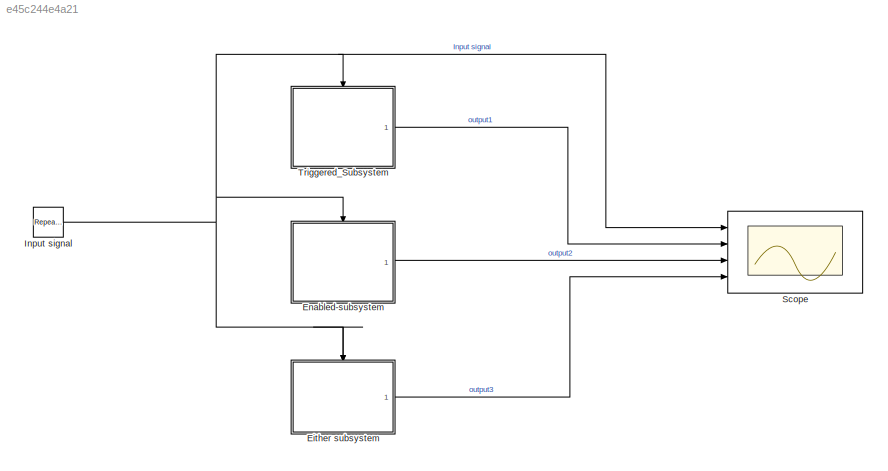
MODEL slx_e45c244e4a21
KIND model
CONFIG AbsTol = auto
CONFIG EnableMultiTasking = off
CONFIG FixedStep = auto
CONFIG MaxStep = auto
CONFIG MinStep = auto
CONFIG RelTol = 1e-3
CONFIG SampleTimeConstraint = Unconstrained
CONFIG Solver = VariableStepAuto
CONFIG SolverName = VariableStepAuto
CONFIG StartTime = 0.0
CONFIG StopTime = 10.0
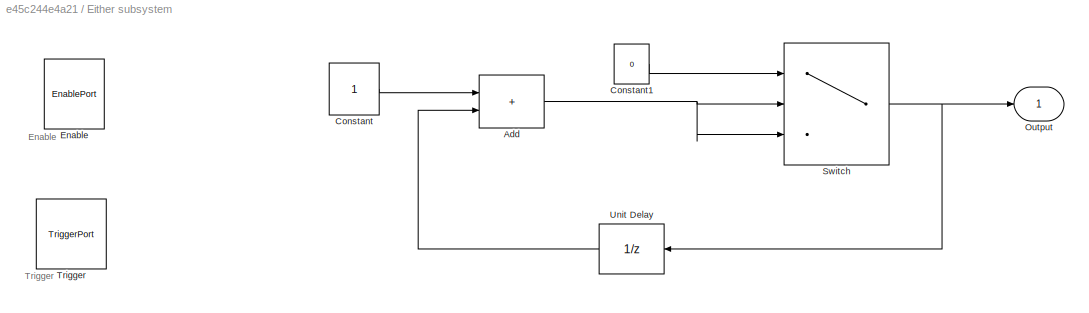
BLOCK [SubSystem] Either subsystem
  Ports = [0, 1, 1, 1]
  RequestExecContextInheritance = off
BLOCK [Sum] Either subsystem/Add
  IconShape = rectangular
  Ports = [2, 1]
BLOCK [Constant] Either subsystem/Constant
BLOCK [Constant] Either subsystem/Constant1
  Value = 0
BLOCK [EnablePort] Either subsystem/Enable
  Ports = []
BLOCK [Outport] Either subsystem/Output
BLOCK [Switch] Either subsystem/Switch
  Criteria = u2 > Threshold
  InputSameDT = off
  SaturateOnIntegerOverflow = off
  Threshold = 1
BLOCK [TriggerPort] Either subsystem/Trigger
  PortDimensions = 1
  Ports = []
  StatesWhenEnabling = held
  VariantControl = Variant
BLOCK [UnitDelay] Either subsystem/Unit Delay
  HasFrameUpgradeWarning = on
  SampleTime = -1
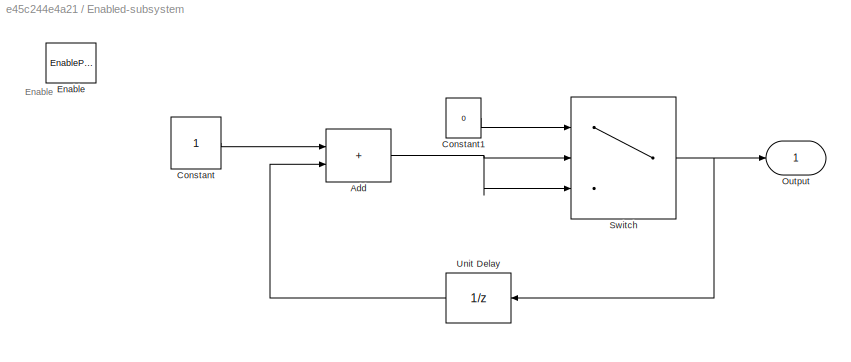
BLOCK [SubSystem] Enabled-subsystem
  Ports = [0, 1, 1]
  RequestExecContextInheritance = off
BLOCK [Sum] Enabled-subsystem/Add
  IconShape = rectangular
  Ports = [2, 1]
BLOCK [Constant] Enabled-subsystem/Constant
BLOCK [Constant] Enabled-subsystem/Constant1
  Value = 0
BLOCK [EnablePort] Enabled-subsystem/Enable
  Ports = []
BLOCK [Outport] Enabled-subsystem/Output
BLOCK [Switch] Enabled-subsystem/Switch
  Criteria = u2 > Threshold
  InputSameDT = off
  SaturateOnIntegerOverflow = off
  Threshold = 1
BLOCK [UnitDelay] Enabled-subsystem/Unit Delay
  HasFrameUpgradeWarning = on
  SampleTime = -1
BLOCK [Reference] Input signal  REF=simulink/Sources/Repeating
Sequence
Stair
  Ports = [0, 1]
  SourceBlock = simulink/Sources/Repeating\nSequence\nStair
  SourceType = Repeating Sequence Stair
BLOCK [Scope] Scope
  Floating = off
  NumInputPorts = 4
  Ports = [4]
  ScopeSpecificationString = Simulink.scopes.TimeScopeBlockCfg('CurrentConfiguration', extmgr.ConfigurationSet(extmgr.Configuration('Core','General UI',true),extmgr.Configuration('Core','Source UI',true),extmgr.Configuration('Sources','WiredSimulink',true),extmgr.Configuration('Visuals','Time Domain',true,'SerializedDisplays',{struct('MinYLimReal','-0.125','MaxYLimReal','1.125','YLabelReal','','MinYLimMag','0.00000','MaxYLimM...<+3315ch>
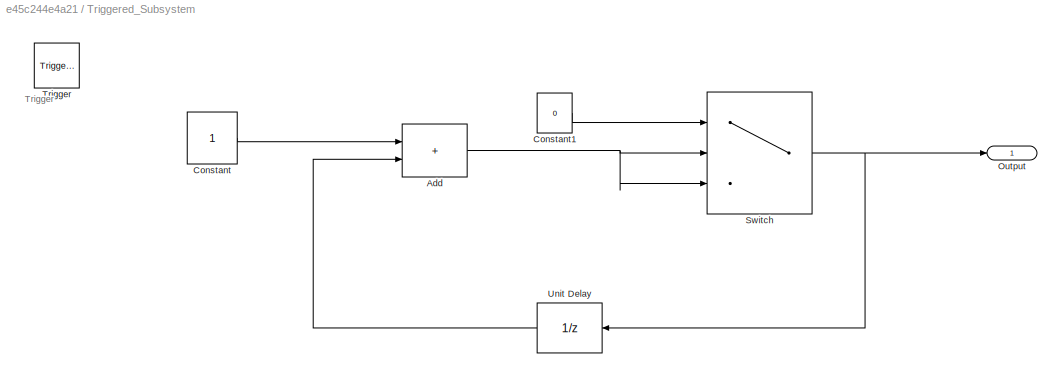
BLOCK [SubSystem] Triggered_Subsystem
  Ports = [0, 1, 0, 1]
  RequestExecContextInheritance = off
BLOCK [Sum] Triggered_Subsystem/Add
  IconShape = rectangular
  Ports = [2, 1]
BLOCK [Constant] Triggered_Subsystem/Constant
BLOCK [Constant] Triggered_Subsystem/Constant1
  Value = 0
BLOCK [Outport] Triggered_Subsystem/Output
BLOCK [Switch] Triggered_Subsystem/Switch
  Criteria = u2 > Threshold
  InputSameDT = off
  SaturateOnIntegerOverflow = off
  Threshold = 1
BLOCK [TriggerPort] Triggered_Subsystem/Trigger
  PortDimensions = 1
  Ports = []
  StatesWhenEnabling = held
  VariantControl = Variant
BLOCK [UnitDelay] Triggered_Subsystem/Unit Delay
  HasFrameUpgradeWarning = on
  SampleTime = -1
ANNOTATION Either subsystem: Enable
ANNOTATION Either subsystem: Trigger
ANNOTATION Enabled-subsystem: Enable
ANNOTATION Triggered_Subsystem: Trigger
NET Either subsystem/Add:1 -> Either subsystem/Switch:2, Either subsystem/Switch:3
LINE Either subsystem/Constant1:1 -> Either subsystem/Switch:1
LINE Either subsystem/Constant:1 -> Either subsystem/Add:1
NET Either subsystem/Switch:1 -> Either subsystem/Output:1, Either subsystem/Unit Delay:1
LINE Either subsystem/Unit Delay:1 -> Either subsystem/Add:2
LINE Either subsystem:1 -> Scope:4
NET Enabled-subsystem/Add:1 -> Enabled-subsystem/Switch:2, Enabled-subsystem/Switch:3
LINE Enabled-subsystem/Constant1:1 -> Enabled-subsystem/Switch:1
LINE Enabled-subsystem/Constant:1 -> Enabled-subsystem/Add:1
NET Enabled-subsystem/Switch:1 -> Enabled-subsystem/Output:1, Enabled-subsystem/Unit Delay:1
LINE Enabled-subsystem/Unit Delay:1 -> Enabled-subsystem/Add:2
LINE Enabled-subsystem:1 -> Scope:3
NET Input signal:1 -> Either subsystem:enable, Either subsystem:trigger, Enabled-subsystem:enable, Scope:1, Triggered_Subsystem:trigger
NET Triggered_Subsystem/Add:1 -> Triggered_Subsystem/Switch:2, Triggered_Subsystem/Switch:3
LINE Triggered_Subsystem/Constant1:1 -> Triggered_Subsystem/Switch:1
LINE Triggered_Subsystem/Constant:1 -> Triggered_Subsystem/Add:1
NET Triggered_Subsystem/Switch:1 -> Triggered_Subsystem/Output:1, Triggered_Subsystem/Unit Delay:1
LINE Triggered_Subsystem/Unit Delay:1 -> Triggered_Subsystem/Add:2
LINE Triggered_Subsystem:1 -> Scope:2
note: NET lines group one-source signal fan-out (src -> all destinations, sorted); 1:1 wires keep LINE
